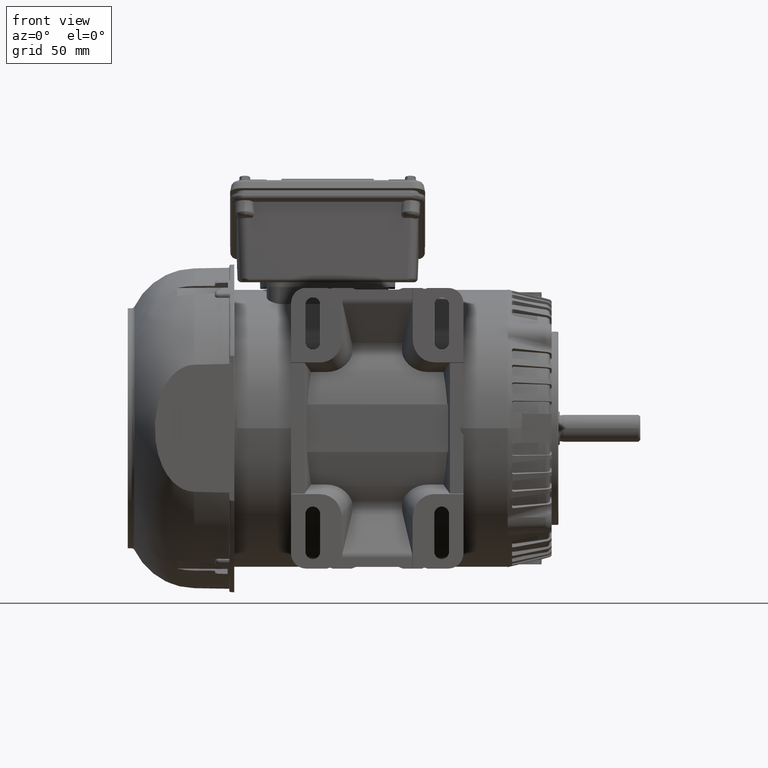
[diagram: clean part render]
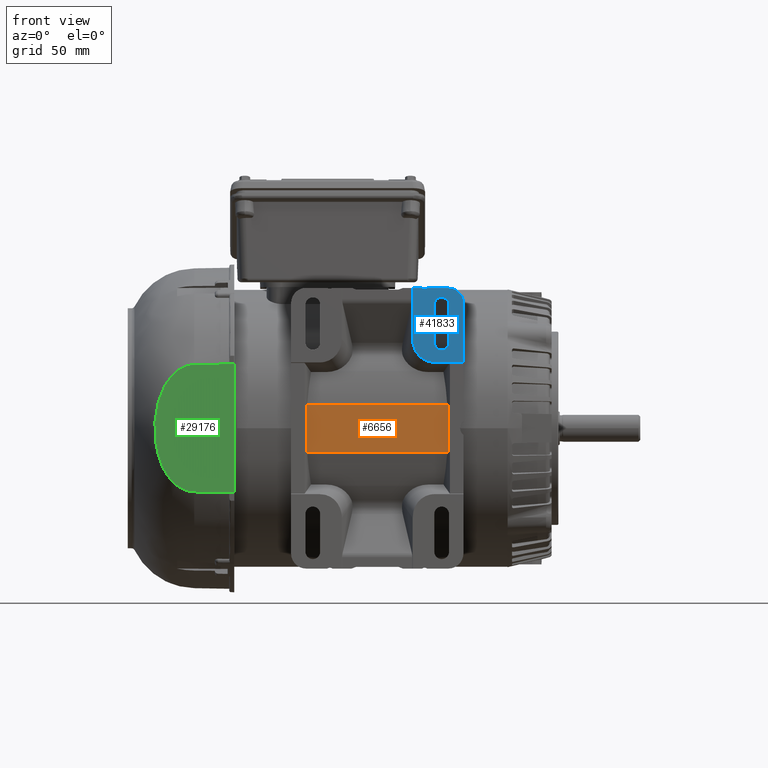
[diagram: same view with three faces highlighted in distinct colors, each labeled with its STEP entity id]
A machine part, front view with three faces highlighted in distinct colors.
Their STEP definitions:

[orange] entity #6656 — the highlighted planar face has unit normal (0, 1, 0).
#1634 = VERTEX_POINT ( 'NONE', #22076 ) ;
#6656 = ADVANCED_FACE ( 'NONE', ( #39586 ), #34708, .F. ) ;
#6910 = CARTESIAN_POINT ( 'NONE',  ( 3.158007908844063127, -3.626958839637413945, 0.5527559055118110853 ) ) ;
#7156 = VECTOR ( 'NONE', #26684, 39.37007874015748143 ) ;
#8835 = AXIS2_PLACEMENT_3D ( 'NONE', #26806, #35509, #47724 ) ;
#10226 = EDGE_CURVE ( 'NONE', #30331, #51995, #13059, .T. ) ;
#10903 = DIRECTION ( 'NONE',  ( 0.000000000000000000, 0.000000000000000000, 1.000000000000000000 ) ) ;
#12898 = LINE ( 'NONE', #13704, #39706 ) ;
#13059 = LINE ( 'NONE', #34226, #20218 ) ;
#13089 = VECTOR ( 'NONE', #10903, 39.37007874015748143 ) ;
#13704 = CARTESIAN_POINT ( 'NONE',  ( 3.158007908844063127, -3.626958839637413945, -0.5527559055118110853 ) ) ;
#14502 = LINE ( 'NONE', #6910, #7156 ) ;
#18631 = ORIENTED_EDGE ( 'NONE', *, *, #38547, .F. ) ;
#20111 = CARTESIAN_POINT ( 'NONE',  ( -0.3039516732968310930, -3.626958839637413945, 3.070866141732283339 ) ) ;
#20218 = VECTOR ( 'NONE', #46162, 39.37007874015748143 ) ;
#22076 = CARTESIAN_POINT ( 'NONE',  ( -0.3039516732968310930, -3.626958839637413945, -0.5527559055118110853 ) ) ;
#24776 = CARTESIAN_POINT ( 'NONE',  ( 2.997920246890468654, -3.626958839637413945, 0.5527559055118110853 ) ) ;
#26684 = DIRECTION ( 'NONE',  ( 1.000000000000000000, 0.000000000000000000, 0.000000000000000000 ) ) ;
#26806 = CARTESIAN_POINT ( 'NONE',  ( 3.158007908844063127, -3.626958839637413945, 3.070866141732283339 ) ) ;
#28900 = CARTESIAN_POINT ( 'NONE',  ( -0.3039516732968310930, -3.626958839637413945, 0.5527559055118110853 ) ) ;
#28926 = ORIENTED_EDGE ( 'NONE', *, *, #10226, .F. ) ;
#28990 = CARTESIAN_POINT ( 'NONE',  ( 2.997920246890468654, -3.626958839637413945, -0.5527559055118110853 ) ) ;
#30331 = VERTEX_POINT ( 'NONE', #24776 ) ;
#34057 = DIRECTION ( 'NONE',  ( -1.000000000000000000, -0.000000000000000000, -0.000000000000000000 ) ) ;
#34226 = CARTESIAN_POINT ( 'NONE',  ( 2.997920246890468654, -3.626958839637413945, 3.070866141732283339 ) ) ;
#34708 = PLANE ( 'NONE',  #8835 ) ;
#35509 = DIRECTION ( 'NONE',  ( 0.000000000000000000, 1.000000000000000000, 0.000000000000000000 ) ) ;
#38547 = EDGE_CURVE ( 'NONE', #1634, #49890, #46994, .T. ) ;
#39586 = FACE_OUTER_BOUND ( 'NONE', #49306, .T. ) ;
#39706 = VECTOR ( 'NONE', #34057, 39.37007874015748143 ) ;
#39715 = EDGE_CURVE ( 'NONE', #49890, #30331, #14502, .T. ) ;
#43235 = ORIENTED_EDGE ( 'NONE', *, *, #49902, .F. ) ;
#46162 = DIRECTION ( 'NONE',  ( -0.000000000000000000, -0.000000000000000000, -1.000000000000000000 ) ) ;
#46870 = ORIENTED_EDGE ( 'NONE', *, *, #39715, .F. ) ;
#46994 = LINE ( 'NONE', #20111, #13089 ) ;
#47724 = DIRECTION ( 'NONE',  ( 0.000000000000000000, 0.000000000000000000, 1.000000000000000000 ) ) ;
#49306 = EDGE_LOOP ( 'NONE', ( #18631, #43235, #28926, #46870 ) ) ;
#49890 = VERTEX_POINT ( 'NONE', #28900 ) ;
#49902 = EDGE_CURVE ( 'NONE', #51995, #1634, #12898, .T. ) ;
#51995 = VERTEX_POINT ( 'NONE', #28990 ) ;

[blue] entity #41833 — the highlighted planar face has unit normal (0, 1, 0).
#264 = AXIS2_PLACEMENT_3D ( 'NONE', #28788, #20419, #41028 ) ;
#884 = DIRECTION ( 'NONE',  ( 1.000000000000000000, 0.000000000000000000, 0.000000000000000000 ) ) ;
#1108 = CARTESIAN_POINT ( 'NONE',  ( 2.691192369930298867, -3.746643879007492739, 1.533858267716535551 ) ) ;
#1204 = CARTESIAN_POINT ( 'NONE',  ( 3.018244129316503876, -3.746643879007492739, 2.913385826771653697 ) ) ;
#1272 = CARTESIAN_POINT ( 'NONE',  ( 2.675724444277133962, -3.746643879007492739, 2.913385826771653697 ) ) ;
#1290 = VECTOR ( 'NONE', #14777, 39.37007874015748143 ) ;
#1533 = VERTEX_POINT ( 'NONE', #13106 ) ;
#1543 = DIRECTION ( 'NONE',  ( -0.000000000000000000, -0.000000000000000000, -1.000000000000000000 ) ) ;
#1685 = DIRECTION ( 'NONE',  ( -0.000000000000000000, 1.000000000000000000, -0.000000000000000000 ) ) ;
#2321 = VERTEX_POINT ( 'NONE', #14528 ) ;
#3052 = CIRCLE ( 'NONE', #53301, 0.1712598425196847629 ) ;
#3200 = LINE ( 'NONE', #32470, #38459 ) ;
#3370 = CIRCLE ( 'NONE', #29336, 0.09842519685039378963 ) ;
#3383 = LINE ( 'NONE', #11254, #26466 ) ;
#3898 = ORIENTED_EDGE ( 'NONE', *, *, #23785, .F. ) ;
#4230 = ORIENTED_EDGE ( 'NONE', *, *, #8735, .F. ) ;
#5329 = CARTESIAN_POINT ( 'NONE',  ( 2.449346491521228408, -3.746643879007492739, 3.248031496062992574 ) ) ;
#5353 = EDGE_CURVE ( 'NONE', #7710, #47999, #11738, .T. ) ;
#5609 = DIRECTION ( 'NONE',  ( 0.000000000000000000, 1.000000000000000000, 0.000000000000000000 ) ) ;
#7299 = AXIS2_PLACEMENT_3D ( 'NONE', #46296, #5609, #46031 ) ;
#7396 = CARTESIAN_POINT ( 'NONE',  ( 2.449346491521228408, -3.746643879007492739, 3.346456692913386100 ) ) ;
#7488 = CARTESIAN_POINT ( 'NONE',  ( 2.172181137190519085, -3.746643879007492295, 1.752539467145614926 ) ) ;
#7710 = VERTEX_POINT ( 'NONE', #34979 ) ;
#8735 = EDGE_CURVE ( 'NONE', #53543, #1533, #38359, .T. ) ;
#9268 = VERTEX_POINT ( 'NONE', #48558 ) ;
#9664 = CIRCLE ( 'NONE', #24364, 0.3543307086614170820 ) ;
#10036 = ORIENTED_EDGE ( 'NONE', *, *, #40030, .F. ) ;
#10709 = EDGE_CURVE ( 'NONE', #7710, #49375, #3200, .T. ) ;
#10951 = VECTOR ( 'NONE', #1543, 39.37007874015748143 ) ;
#11254 = CARTESIAN_POINT ( 'NONE',  ( 2.172181137190519529, -3.746643879007492739, 1.533858267716535551 ) ) ;
#11442 = VERTEX_POINT ( 'NONE', #1108 ) ;
#11729 = ORIENTED_EDGE ( 'NONE', *, *, #32863, .F. ) ;
#11738 = CIRCLE ( 'NONE', #41207, 0.09842519685039378963 ) ;
#12177 = DIRECTION ( 'NONE',  ( -0.000000000000000000, -1.000000000000000000, -0.000000000000000000 ) ) ;
#12913 = LINE ( 'NONE', #1272, #10951 ) ;
#13034 = ORIENTED_EDGE ( 'NONE', *, *, #5353, .T. ) ;
#13106 = CARTESIAN_POINT ( 'NONE',  ( 3.018244129316503876, -3.746643879007492739, 2.875984251968504157 ) ) ;
#13512 = ORIENTED_EDGE ( 'NONE', *, *, #21244, .F. ) ;
#13866 = CARTESIAN_POINT ( 'NONE',  ( 2.449346491521228408, -3.746643879007492739, 3.346456692913386100 ) ) ;
#14177 = CARTESIAN_POINT ( 'NONE',  ( 3.018244129316503876, -3.746643879007492739, 1.998031496062992352 ) ) ;
#14198 = LINE ( 'NONE', #43503, #39396 ) ;
#14528 = CARTESIAN_POINT ( 'NONE',  ( 2.172181137190519529, -3.746643879007492739, 3.267716535433071279 ) ) ;
#14615 = DIRECTION ( 'NONE',  ( 0.000000000000000000, 0.000000000000000000, 1.000000000000000000 ) ) ;
#14777 = DIRECTION ( 'NONE',  ( 0.000000000000000000, 0.000000000000000000, 1.000000000000000000 ) ) ;
#14874 = CARTESIAN_POINT ( 'NONE',  ( 2.846984286796818697, -3.746643879007492739, 1.998031496062992352 ) ) ;
#15879 = CARTESIAN_POINT ( 'NONE',  ( 2.172181137190519529, -3.746643879007492739, 2.089521915956247700 ) ) ;
#16196 = CARTESIAN_POINT ( 'NONE',  ( 2.172181137190519529, -3.746643879007492739, 2.089521915956247700 ) ) ;
#17739 = DIRECTION ( 'NONE',  ( 0.000000000000000000, 0.000000000000000000, 1.000000000000000000 ) ) ;
#19082 = VERTEX_POINT ( 'NONE', #48208 ) ;
#20419 = DIRECTION ( 'NONE',  ( -0.000000000000000000, -1.000000000000000000, -0.000000000000000000 ) ) ;
#20659 = DIRECTION ( 'NONE',  ( 0.000000000000000000, 0.000000000000000000, 1.000000000000000000 ) ) ;
#21244 = EDGE_CURVE ( 'NONE', #48341, #34800, #12913, .T. ) ;
#21583 = EDGE_CURVE ( 'NONE', #37068, #41401, #14198, .T. ) ;
#21908 = CIRCLE ( 'NONE', #42695, 0.1712598425196850405 ) ;
#22362 = DIRECTION ( 'NONE',  ( -0.000000000000000000, -0.000000000000000000, -1.000000000000000000 ) ) ;
#22890 = CARTESIAN_POINT ( 'NONE',  ( 3.354858302544854620, -3.746643879007492739, 2.913385826771653697 ) ) ;
#23281 = DIRECTION ( 'NONE',  ( 1.000000000000000000, 0.000000000000000000, 0.000000000000000000 ) ) ;
#23427 = EDGE_CURVE ( 'NONE', #41401, #11442, #3383, .T. ) ;
#23785 = EDGE_CURVE ( 'NONE', #11442, #52864, #50214, .T. ) ;
#23922 = DIRECTION ( 'NONE',  ( -0.000000000000000000, 1.000000000000000000, -0.000000000000000000 ) ) ;
#24364 = AXIS2_PLACEMENT_3D ( 'NONE', #42061, #45869, #20659 ) ;
#24909 = CARTESIAN_POINT ( 'NONE',  ( 2.846984286796818697, -3.746643879007492739, 2.875984251968504157 ) ) ;
#25509 = CARTESIAN_POINT ( 'NONE',  ( 3.000527593883436595, -3.746643879007492739, 3.267716535433071279 ) ) ;
#25864 = CARTESIAN_POINT ( 'NONE',  ( 2.675724444277133962, -3.746643879007492739, 2.875984251968504157 ) ) ;
#26466 = VECTOR ( 'NONE', #37759, 39.37007874015748143 ) ;
#26699 = LINE ( 'NONE', #48145, #1290 ) ;
#28788 = CARTESIAN_POINT ( 'NONE',  ( 2.846984286796818697, -3.746643879007492739, 2.875984251968504157 ) ) ;
#29336 = AXIS2_PLACEMENT_3D ( 'NONE', #7396, #23922, #53205 ) ;
#29461 = FACE_OUTER_BOUND ( 'NONE', #42278, .T. ) ;
#30005 = FACE_BOUND ( 'NONE', #37380, .T. ) ;
#30404 = DIRECTION ( 'NONE',  ( 0.000000000000000000, 0.000000000000000000, -1.000000000000000000 ) ) ;
#31405 = CARTESIAN_POINT ( 'NONE',  ( 2.675724444277133962, -3.746643879007492739, 1.998031496062992352 ) ) ;
#32470 = CARTESIAN_POINT ( 'NONE',  ( 3.000527593883436595, -3.746643879007492739, 3.267716535433071279 ) ) ;
#32569 = ORIENTED_EDGE ( 'NONE', *, *, #53075, .F. ) ;
#32863 = EDGE_CURVE ( 'NONE', #49375, #37068, #9664, .T. ) ;
#32920 = ORIENTED_EDGE ( 'NONE', *, *, #23427, .F. ) ;
#33350 = CARTESIAN_POINT ( 'NONE',  ( 3.354858302544850623, -3.746643879007492739, 1.533858267716535551 ) ) ;
#33593 = DIRECTION ( 'NONE',  ( 0.000000000000000000, 0.000000000000000000, 1.000000000000000000 ) ) ;
#34283 = EDGE_CURVE ( 'NONE', #2321, #9268, #42095, .T. ) ;
#34761 = ORIENTED_EDGE ( 'NONE', *, *, #53609, .F. ) ;
#34800 = VERTEX_POINT ( 'NONE', #31405 ) ;
#34841 = EDGE_CURVE ( 'NONE', #34800, #53543, #21908, .T. ) ;
#34979 = CARTESIAN_POINT ( 'NONE',  ( 2.508401609631464524, -3.746643879007492739, 3.267716535433071279 ) ) ;
#35246 = DIRECTION ( 'NONE',  ( -0.000000000000000000, -1.000000000000000000, -0.000000000000000000 ) ) ;
#37068 = VERTEX_POINT ( 'NONE', #22890 ) ;
#37380 = EDGE_LOOP ( 'NONE', ( #4230, #46744, #13512, #10036, #34761 ) ) ;
#37759 = DIRECTION ( 'NONE',  ( -1.000000000000000000, -0.000000000000000000, -0.000000000000000000 ) ) ;
#38359 = LINE ( 'NONE', #1204, #40044 ) ;
#38459 = VECTOR ( 'NONE', #23281, 39.37007874015748143 ) ;
#39107 = ORIENTED_EDGE ( 'NONE', *, *, #50610, .T. ) ;
#39396 = VECTOR ( 'NONE', #22362, 39.37007874015748143 ) ;
#40030 = EDGE_CURVE ( 'NONE', #19082, #48341, #40090, .T. ) ;
#40044 = VECTOR ( 'NONE', #17739, 39.37007874015748143 ) ;
#40090 = CIRCLE ( 'NONE', #264, 0.1712598425196847629 ) ;
#40814 = ORIENTED_EDGE ( 'NONE', *, *, #10709, .F. ) ;
#41028 = DIRECTION ( 'NONE',  ( 0.000000000000000000, 0.000000000000000000, 1.000000000000000000 ) ) ;
#41207 = AXIS2_PLACEMENT_3D ( 'NONE', #13866, #1685, #30404 ) ;
#41401 = VERTEX_POINT ( 'NONE', #33350 ) ;
#41833 = ADVANCED_FACE ( 'NONE', ( #29461, #30005 ), #46572, .F. ) ;
#42061 = CARTESIAN_POINT ( 'NONE',  ( 3.000527593883436595, -3.746643879007492739, 2.913385826771653697 ) ) ;
#42095 = LINE ( 'NONE', #43170, #49601 ) ;
#42148 = ORIENTED_EDGE ( 'NONE', *, *, #34283, .F. ) ;
#42278 = EDGE_LOOP ( 'NONE', ( #13034, #39107, #42148, #32569, #3898, #32920, #48004, #11729, #40814 ) ) ;
#42695 = AXIS2_PLACEMENT_3D ( 'NONE', #14874, #35246, #14615 ) ;
#43170 = CARTESIAN_POINT ( 'NONE',  ( 3.000527593883436595, -3.746643879007492739, 3.267716535433071279 ) ) ;
#43503 = CARTESIAN_POINT ( 'NONE',  ( 3.354858302544854620, -3.746643879007492739, 2.913385826771653697 ) ) ;
#44102 = CARTESIAN_POINT ( 'NONE',  ( 2.376437793626927419, -3.746643879007492295, 1.533858267716537549 ) ) ;
#45869 = DIRECTION ( 'NONE',  ( 0.000000000000000000, 1.000000000000000000, 0.000000000000000000 ) ) ;
#46031 = DIRECTION ( 'NONE',  ( 0.000000000000000000, 0.000000000000000000, 1.000000000000000000 ) ) ;
#46296 = CARTESIAN_POINT ( 'NONE',  ( 3.000527593883436595, -3.746643879007492739, 2.913385826771653697 ) ) ;
#46572 = PLANE ( 'NONE',  #7299 ) ;
#46744 = ORIENTED_EDGE ( 'NONE', *, *, #34841, .F. ) ;
#47999 = VERTEX_POINT ( 'NONE', #5329 ) ;
#48004 = ORIENTED_EDGE ( 'NONE', *, *, #21583, .F. ) ;
#48145 = CARTESIAN_POINT ( 'NONE',  ( 2.172181137190519529, -3.746643879007492739, 2.913385826771653697 ) ) ;
#48208 = CARTESIAN_POINT ( 'NONE',  ( 2.846984286796818697, -3.746643879007492739, 3.047244094488188892 ) ) ;
#48341 = VERTEX_POINT ( 'NONE', #25864 ) ;
#48558 = CARTESIAN_POINT ( 'NONE',  ( 2.390291373411007836, -3.746643879007492739, 3.267716535433071279 ) ) ;
#49375 = VERTEX_POINT ( 'NONE', #25509 ) ;
#49601 = VECTOR ( 'NONE', #884, 39.37007874015748143 ) ;
#50214 =( BOUNDED_CURVE ( )  B_SPLINE_CURVE ( 3, ( #52226, #44102, #7488, #15879 ),
 .UNSPECIFIED., .F., .T. ) 
 B_SPLINE_CURVE_WITH_KNOTS ( ( 4, 4 ),
 ( 5.763583162502176727, 7.145963354187789385 ),
 .UNSPECIFIED. ) 
 CURVE ( )  GEOMETRIC_REPRESENTATION_ITEM ( )  RATIONAL_B_SPLINE_CURVE ( ( 1.000000000000000000, 0.8469919525019538042, 0.8469919525019538042, 1.000000000000000000 ) ) 
 REPRESENTATION_ITEM ( '' )  );
#50610 = EDGE_CURVE ( 'NONE', #47999, #9268, #3370, .T. ) ;
#52226 = CARTESIAN_POINT ( 'NONE',  ( 2.691192369930298867, -3.746643879007492739, 1.533858267716535551 ) ) ;
#52864 = VERTEX_POINT ( 'NONE', #16196 ) ;
#53075 = EDGE_CURVE ( 'NONE', #52864, #2321, #26699, .T. ) ;
#53205 = DIRECTION ( 'NONE',  ( 0.000000000000000000, 0.000000000000000000, -1.000000000000000000 ) ) ;
#53301 = AXIS2_PLACEMENT_3D ( 'NONE', #24909, #12177, #33593 ) ;
#53543 = VERTEX_POINT ( 'NONE', #14177 ) ;
#53609 = EDGE_CURVE ( 'NONE', #1533, #19082, #3052, .T. ) ;

[green] entity #29176 — the highlighted planar face has unit normal (0.0087, 1, 0).
#261 = CARTESIAN_POINT ( 'NONE',  ( -3.291129119820957349, -3.660414002167213798, 1.352956721891920511 ) ) ;
#799 = CARTESIAN_POINT ( 'NONE',  ( -3.075148290497668135, -3.662298838310057647, 1.457071410769285258 ) ) ;
#2446 = CARTESIAN_POINT ( 'NONE',  ( -2.955976554352686136, -3.663338834295789770, -1.479209210691379450 ) ) ;
#3357 = CARTESIAN_POINT ( 'NONE',  ( -1.981755870683503673, -3.671840729401193659, -1.502266458924313097 ) ) ;
#3768 = CARTESIAN_POINT ( 'NONE',  ( -3.621073268968446612, -3.657534623199270030, -0.9599862699869321503 ) ) ;
#4043 = CARTESIAN_POINT ( 'NONE',  ( -3.770874266658080565, -3.656227329697507855, -0.5499306835335079358 ) ) ;
#4311 = CARTESIAN_POINT ( 'NONE',  ( -3.561166209673027438, -3.658057424185475970, -1.063466936994670542 ) ) ;
#4576 = CARTESIAN_POINT ( 'NONE',  ( -3.239886603457590830, -3.660861188832781554, 1.384912286313741303 ) ) ;
#4850 = CARTESIAN_POINT ( 'NONE',  ( -3.680740599219212150, -3.657013914296744161, 0.8308788856817258539 ) ) ;
#8122 = CARTESIAN_POINT ( 'NONE',  ( -3.673036635523756033, -3.657081145769378150, 0.8492622419496601571 ) ) ;
#8252 = CARTESIAN_POINT ( 'NONE',  ( -1.981755870683503673, -3.671840729401193659, -1.502266458924313097 ) ) ;
#8399 = CARTESIAN_POINT ( 'NONE',  ( -3.814287421282146262, -3.655848468836720322, -0.3163092235536518748 ) ) ;
#8915 = CARTESIAN_POINT ( 'NONE',  ( -3.702708083662422212, -3.656822206964311039, -0.7794308462778964941 ) ) ;
#10040 = CARTESIAN_POINT ( 'NONE',  ( -2.915544555185803688, -3.663691679007035518, 1.480170181411565089 ) ) ;
#10853 = CARTESIAN_POINT ( 'NONE',  ( -2.915544555185661579, -3.663691679007035518, -1.480170181411512020 ) ) ;
#11119 = CARTESIAN_POINT ( 'NONE',  ( -3.414313014929225787, -3.659338992600655427, -1.252481272834858217 ) ) ;
#11480 = VERTEX_POINT ( 'NONE', #10040 ) ;
#11917 = CARTESIAN_POINT ( 'NONE',  ( -3.272718107187521763, -3.660574672640362071, -1.364480058385320271 ) ) ;
#12442 = CARTESIAN_POINT ( 'NONE',  ( -3.752602854818209099, -3.656386781892986271, 0.6256027874689856771 ) ) ;
#12718 = CARTESIAN_POINT ( 'NONE',  ( -3.168525926772373769, -3.661483944023672610, 1.421890861343041657 ) ) ;
#12977 = CARTESIAN_POINT ( 'NONE',  ( -3.563795550765147535, -3.658034478273387347, 1.063136351741922114 ) ) ;
#13234 = CARTESIAN_POINT ( 'NONE',  ( -3.602197056749236737, -3.657699353407699583, -0.9949651689829122070 ) ) ;
#14835 = VERTEX_POINT ( 'NONE', #3357 ) ;
#15264 = FACE_OUTER_BOUND ( 'NONE', #51550, .T. ) ;
#15803 = CARTESIAN_POINT ( 'NONE',  ( -1.981755870683503673, -3.671840729401193659, 3.671259842519685179 ) ) ;
#15995 = CARTESIAN_POINT ( 'NONE',  ( -3.186314835222927133, -3.661328702571484239, -1.414553295839287239 ) ) ;
#16039 = VECTOR ( 'NONE', #40338, 39.37007874015748143 ) ;
#16265 = CARTESIAN_POINT ( 'NONE',  ( -3.814235543044542709, -3.655848921571245747, 0.3168324593034294034 ) ) ;
#16534 = CARTESIAN_POINT ( 'NONE',  ( -3.604371827856963861, -3.657680374467765283, 0.9943516687657548703 ) ) ;
#16802 = CARTESIAN_POINT ( 'NONE',  ( -3.186645964325883540, -3.661325812851579986, 1.413425786278794449 ) ) ;
#17011 = EDGE_CURVE ( 'NONE', #14835, #30197, #46919, .T. ) ;
#17334 = CARTESIAN_POINT ( 'NONE',  ( -2.995970536521848082, -3.662989812100971854, 1.473393212411484354 ) ) ;
#19532 = CARTESIAN_POINT ( 'NONE',  ( -3.073299490417739754, -3.662314972543927460, -1.456605701642130102 ) ) ;
#20330 = CARTESIAN_POINT ( 'NONE',  ( -3.832163581489549831, -3.655692465949984982, 0.07866546565765153431 ) ) ;
#20604 = CARTESIAN_POINT ( 'NONE',  ( -3.467713786738341408, -3.658872971125151974, -1.193592084313286339 ) ) ;
#20863 = CARTESIAN_POINT ( 'NONE',  ( -3.828408300550950383, -3.655725237790253157, 0.1584146715881637468 ) ) ;
#21123 = CARTESIAN_POINT ( 'NONE',  ( -3.015943564776664143, -3.662815510124012075, 1.470004148626409268 ) ) ;
#21394 = CARTESIAN_POINT ( 'NONE',  ( -3.323272921690669346, -3.660133487458005153, 1.329274657763777956 ) ) ;
#22986 = CARTESIAN_POINT ( 'NONE',  ( -1.981755870683503673, -3.671840729401193659, 2.898961162089067626E-14 ) ) ;
#23512 = LINE ( 'NONE', #22986, #16039 ) ;
#23937 = PLANE ( 'NONE',  #32772 ) ;
#24377 = CARTESIAN_POINT ( 'NONE',  ( -3.538896068404260298, -3.658251772764010035, -1.097127168261255559 ) ) ;
#24647 = CARTESIAN_POINT ( 'NONE',  ( -3.412841213083662950, -3.659351836820772252, 1.250139305761707842 ) ) ;
#24731 = DIRECTION ( 'NONE',  ( -0.9999619230641711987, 0.008726535498373962432, 0.000000000000000000 ) ) ;
#24912 = CARTESIAN_POINT ( 'NONE',  ( -3.802998216302754919, -3.655946988236041584, -0.3945104374591959506 ) ) ;
#25169 = CARTESIAN_POINT ( 'NONE',  ( -2.955921277281347681, -3.663339316691483383, 1.478229139283844695 ) ) ;
#25431 = CARTESIAN_POINT ( 'NONE',  ( -3.384131152232881856, -3.659602385726084428, 1.277868523749308594 ) ) ;
#25792 = CARTESIAN_POINT ( 'NONE',  ( -2.293019522045951053, -3.669124372667684320, 1.494933076147448636 ) ) ;
#27112 = ORIENTED_EDGE ( 'NONE', *, *, #52805, .F. ) ;
#27366 = CARTESIAN_POINT ( 'NONE',  ( -2.995626915068729801, -3.662992810839963642, -1.474368517230268072 ) ) ;
#27696 = B_SPLINE_CURVE_WITH_KNOTS ( 'NONE', 3,
 ( #50525, #30678, #25792, #42357 ),
 .UNSPECIFIED., .F., .F.,
 ( 4, 4 ),
 ( 3.692697840400581029E-15, 0.02372577494264667408 ),
 .UNSPECIFIED. ) ;
#28980 = CARTESIAN_POINT ( 'NONE',  ( -3.222289451293304019, -3.661014756853213203, 1.394960947612416513 ) ) ;
#29176 = ADVANCED_FACE ( 'NONE', ( #15264 ), #23937, .F. ) ;
#29246 = CARTESIAN_POINT ( 'NONE',  ( -2.935788273448364905, -3.663515014754161747, 1.479689037245606409 ) ) ;
#29765 = CARTESIAN_POINT ( 'NONE',  ( -3.673440267734146669, -3.657077623324440641, -0.8531568723862298365 ) ) ;
#30197 = VERTEX_POINT ( 'NONE', #34404 ) ;
#30678 = CARTESIAN_POINT ( 'NONE',  ( -2.604282431542563447, -3.666408022408337963, 1.487568128415666768 ) ) ;
#31982 = CARTESIAN_POINT ( 'NONE',  ( -3.221784094727809578, -3.661019167033150890, -1.396112613618662124 ) ) ;
#32102 = ORIENTED_EDGE ( 'NONE', *, *, #36369, .F. ) ;
#32772 = AXIS2_PLACEMENT_3D ( 'NONE', #15803, #32872, #24731 ) ;
#32785 = CARTESIAN_POINT ( 'NONE',  ( -3.466840245319291469, -3.658880594405623743, 1.190576665187540017 ) ) ;
#32872 = DIRECTION ( 'NONE',  ( 0.008726535498373964167, 0.9999619230641713097, 1.488177950045970603E-16 ) ) ;
#33049 = CARTESIAN_POINT ( 'NONE',  ( -3.453607385787832218, -3.658996075821248528, 1.205835875138108193 ) ) ;
#33324 = CARTESIAN_POINT ( 'NONE',  ( -3.833083539842407017, -3.655684437595070335, 0.03888940273469419784 ) ) ;
#33724 = CARTESIAN_POINT ( 'NONE',  ( -2.915544555185661579, -3.663691679007035518, -1.480170181411512020 ) ) ;
#33866 = CARTESIAN_POINT ( 'NONE',  ( -3.779704959575663992, -3.656150265407914102, -0.5111579071626605186 ) ) ;
#34404 = CARTESIAN_POINT ( 'NONE',  ( -2.915544555185661579, -3.663691679007035518, -1.480170181411512020 ) ) ;
#36083 = CARTESIAN_POINT ( 'NONE',  ( -3.111506438065022362, -3.661981545563119056, -1.444600516080520647 ) ) ;
#36348 = CARTESIAN_POINT ( 'NONE',  ( -3.289315833008954026, -3.660429826481487403, -1.353270512294054706 ) ) ;
#36369 = EDGE_CURVE ( 'NONE', #11480, #37214, #27696, .T. ) ;
#36616 = CARTESIAN_POINT ( 'NONE',  ( -3.054017551194403879, -3.662483243478278805, -1.461722467646103807 ) ) ;
#37147 = CARTESIAN_POINT ( 'NONE',  ( -3.739680361155700794, -3.656499554786704742, -0.6657642656211839594 ) ) ;
#37214 = VERTEX_POINT ( 'NONE', #45919 ) ;
#37409 = CARTESIAN_POINT ( 'NONE',  ( -3.648429352968583395, -3.657295890270928496, 0.9041001620942776817 ) ) ;
#37815 = CARTESIAN_POINT ( 'NONE',  ( -2.293019522045856906, -3.669124372667685208, -1.494933076147393791 ) ) ;
#37955 = CARTESIAN_POINT ( 'NONE',  ( -3.113237939940372456, -3.661966434975173712, 1.444899183811743759 ) ) ;
#40338 = DIRECTION ( 'NONE',  ( 0.000000000000000000, 0.000000000000000000, -1.000000000000000000 ) ) ;
#41088 = ORIENTED_EDGE ( 'NONE', *, *, #50937, .F. ) ;
#41218 = CARTESIAN_POINT ( 'NONE',  ( -3.833046299348418451, -3.655684762587937175, -0.08015097875436545671 ) ) ;
#41478 = CARTESIAN_POINT ( 'NONE',  ( -3.829314100523384390, -3.655717332993648760, -0.1591297656074571742 ) ) ;
#41739 = CARTESIAN_POINT ( 'NONE',  ( -3.504588731580688510, -3.658551168356721561, 1.143677650832618964 ) ) ;
#42004 = CARTESIAN_POINT ( 'NONE',  ( -3.825575268883743441, -3.655749961283063065, 0.1982477379502420867 ) ) ;
#42357 = CARTESIAN_POINT ( 'NONE',  ( -1.981755870683503673, -3.671840729401193659, 1.502266458924372161 ) ) ;
#43945 = CARTESIAN_POINT ( 'NONE',  ( -3.337676676410149312, -3.660007787794878453, -1.317080491580779222 ) ) ;
#44847 = B_SPLINE_CURVE_WITH_KNOTS ( 'NONE', 3,
 ( #10853, #2446, #27366, #36616, #19532, #36083, #48278, #15995, #31982, #11917, #36348, #52865, #43945, #11119, #20604, #24377, #4311, #13234, #3768, #29765, #8915, #37147, #45556, #4043, #33866, #24912, #8399, #41478, #41218, #33324, #20330, #20863, #42004, #16265, #53405, #46071, #12442, #53669, #50165, #4850, #8122, #49621, #37409, #16534, #12977, #41739, #49897, #32785, #33049, #24647, #25431, #21394, #261, #4576, #28980, #16802, #12718, #37955, #799, #21123, #17334, #25169, #29246, #45815 ),
 .UNSPECIFIED., .F., .F.,
 ( 4, 2, 2, 2, 2, 2, 2, 2, 2, 2, 2, 2, 2, 2, 2, 2, 2, 2, 2, 2, 2, 2, 2, 2, 2, 2, 2, 2, 2, 2, 2, 4 ),
 ( 1.129570089970756843E-16, 0.003034806698275431969, 0.004552210047413090058, 0.006069613396550746845, 0.009104420094826055215, 0.01062182344396372068, 0.01213922679310138787, 0.01820884018965205492, 0.02124364688792738237, 0.02427845358620270635, 0.03034806698275335085, 0.03338287368102867830, 0.03641768037930400576, 0.04248729377585467454, 0.04855690717240533638, 0.05159171387068066383, 0.05462652056895599822, 0.06069613396550667395, 0.06676574736205732885, 0.06980055406033265630, 0.07131795740947032003, 0.07283536075860799763, 0.07890497415515870805, 0.08042237750429638565, 0.08193978085343406326, 0.08497458755170939071, 0.08800939424998474592, 0.08952679759912242352, 0.09104420094826011500, 0.09407900764653549797, 0.09559641099567318945, 0.09711381434481086705 ),
 .UNSPECIFIED. ) ;
#45556 = CARTESIAN_POINT ( 'NONE',  ( -3.750867103398381808, -3.656401929566143405, -0.6272348691214680860 ) ) ;
#45815 = CARTESIAN_POINT ( 'NONE',  ( -2.915544555185803688, -3.663691679007035518, 1.480170181411565089 ) ) ;
#45919 = CARTESIAN_POINT ( 'NONE',  ( -1.981755870683503673, -3.671840729401193659, 1.502266458924372161 ) ) ;
#46071 = CARTESIAN_POINT ( 'NONE',  ( -3.772076663727521151, -3.656216836537249826, 0.5493757499349072315 ) ) ;
#46919 = B_SPLINE_CURVE_WITH_KNOTS ( 'NONE', 3,
 ( #8252, #37815, #50022, #33724 ),
 .UNSPECIFIED., .F., .F.,
 ( 4, 4 ),
 ( 6.938893903907228378E-18, 0.02372577494263935702 ),
 .UNSPECIFIED. ) ;
#47013 = ORIENTED_EDGE ( 'NONE', *, *, #17011, .F. ) ;
#48278 = CARTESIAN_POINT ( 'NONE',  ( -3.130516384844883593, -3.661815648270862145, -1.437674697339432983 ) ) ;
#49621 = CARTESIAN_POINT ( 'NONE',  ( -3.656890549945611024, -3.657222050523557311, 0.8858536499492332128 ) ) ;
#49897 = CARTESIAN_POINT ( 'NONE',  ( -3.492317330084725224, -3.658658259255182621, 1.159510270418480316 ) ) ;
#50022 = CARTESIAN_POINT ( 'NONE',  ( -2.604282431542374709, -3.666408022408341516, -1.487568128415613478 ) ) ;
#50165 = CARTESIAN_POINT ( 'NONE',  ( -3.702823214597176005, -3.656821202231868906, 0.7754843750985033202 ) ) ;
#50525 = CARTESIAN_POINT ( 'NONE',  ( -2.915544555185803688, -3.663691679007035518, 1.480170181411565089 ) ) ;
#50937 = EDGE_CURVE ( 'NONE', #30197, #11480, #44847, .T. ) ;
#51550 = EDGE_LOOP ( 'NONE', ( #32102, #41088, #47013, #27112 ) ) ;
#52805 = EDGE_CURVE ( 'NONE', #37214, #14835, #23512, .T. ) ;
#52865 = CARTESIAN_POINT ( 'NONE',  ( -3.321785810111531401, -3.660146465284145556, -1.329582080170178315 ) ) ;
#53405 = CARTESIAN_POINT ( 'NONE',  ( -3.802898663426499848, -3.655947857020831027, 0.3949919289922103616 ) ) ;
#53669 = CARTESIAN_POINT ( 'NONE',  ( -3.716175917194600498, -3.656704674961649193, 0.7382295690406315281 ) ) ;